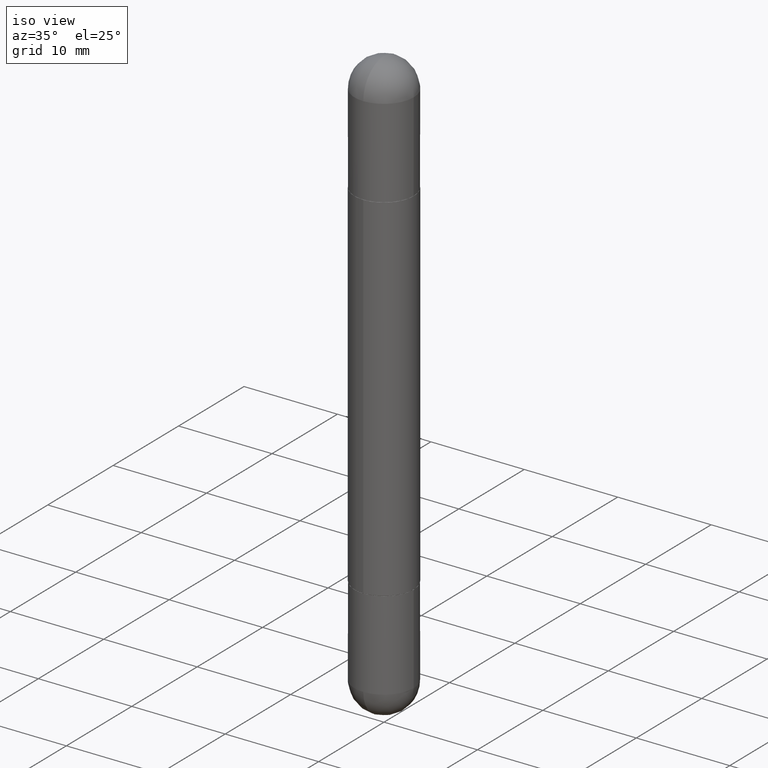
[diagram: clean part render]
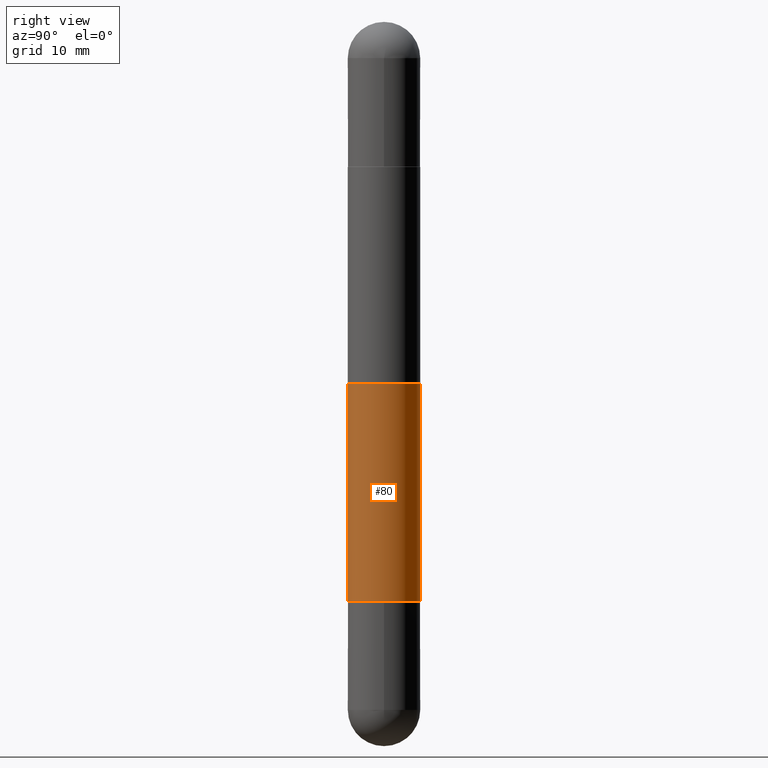
[diagram: tour spotlight — one face highlighted and labeled with its STEP entity id]
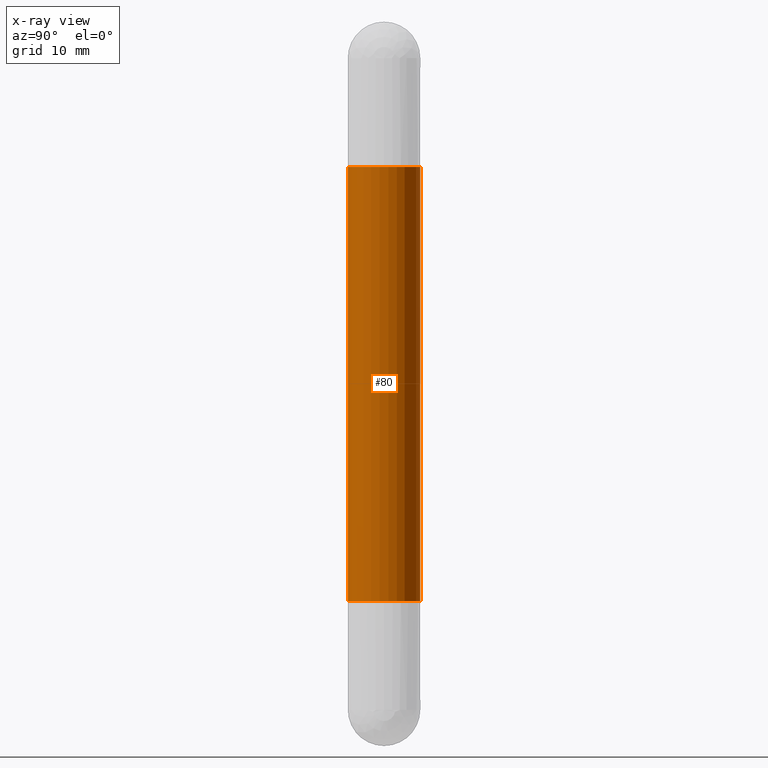
[diagram: x-ray of the same camera — body ghosted, this tour face saturated]
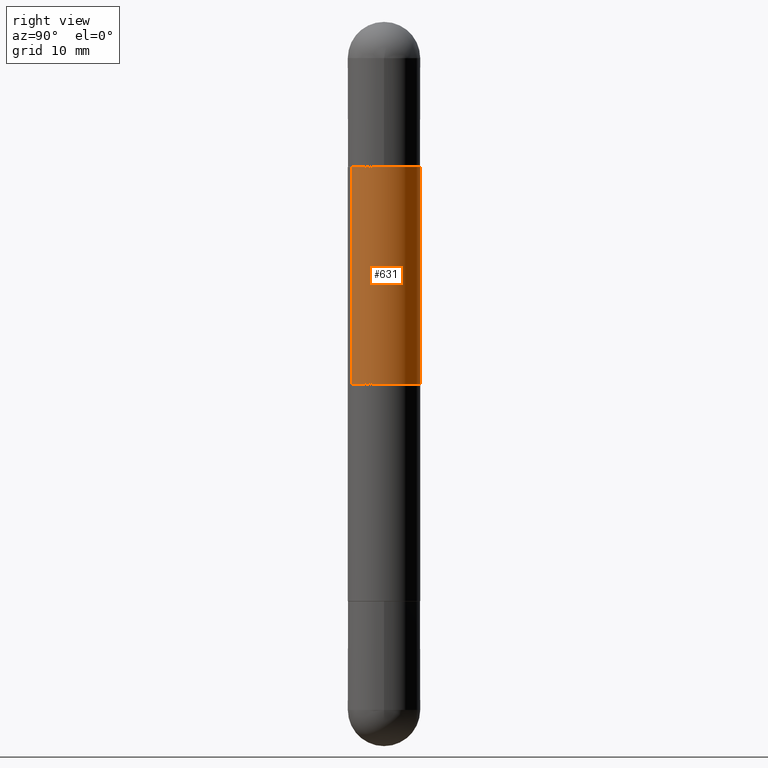
[diagram: tour spotlight — one face highlighted and labeled with its STEP entity id]
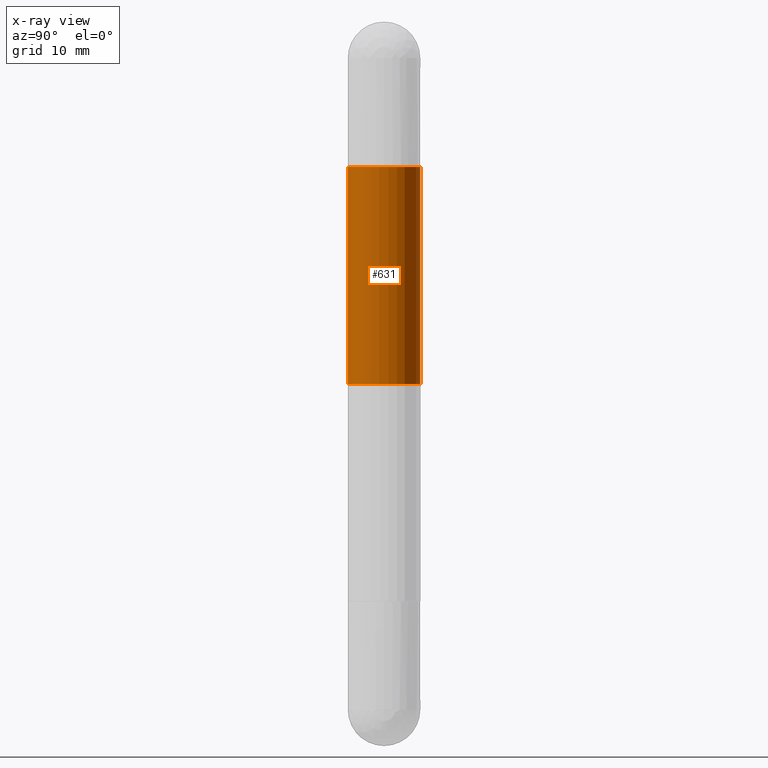
[diagram: x-ray of the same camera — body ghosted, this tour face saturated]
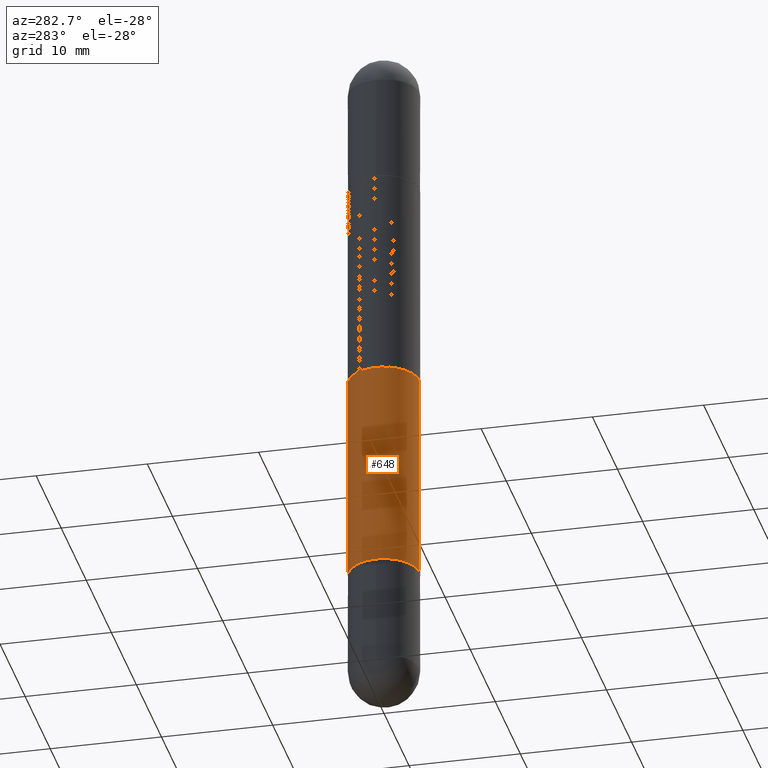
[diagram: tour spotlight — one face highlighted and labeled with its STEP entity id]
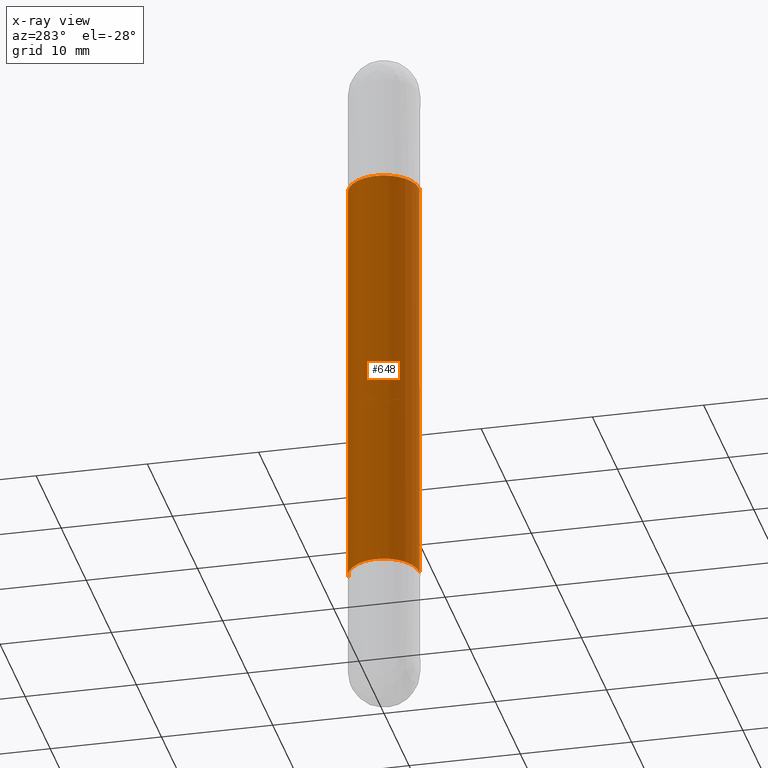
[diagram: x-ray of the same camera — body ghosted, this tour face saturated]
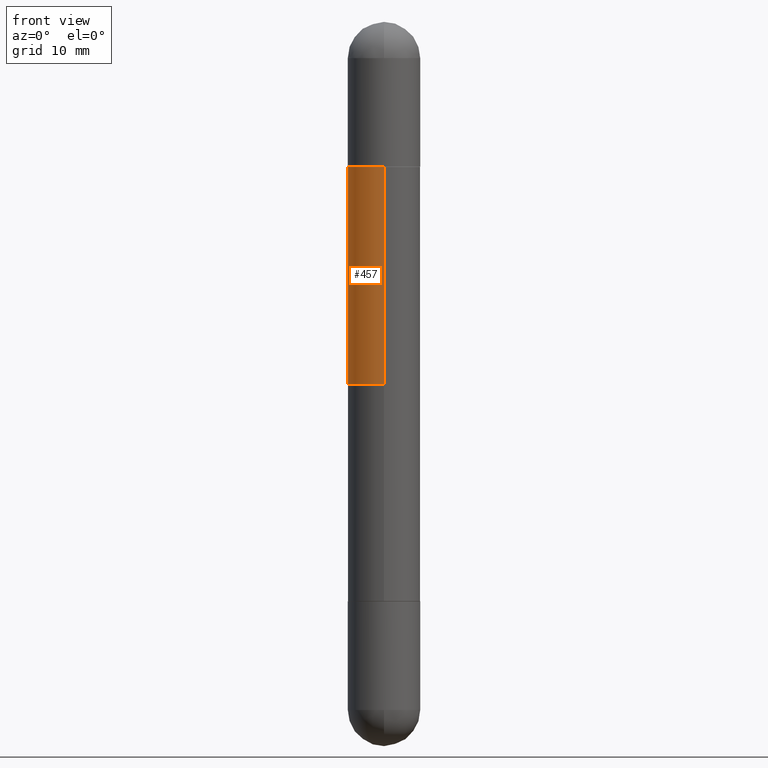
[diagram: tour spotlight — one face highlighted and labeled with its STEP entity id]
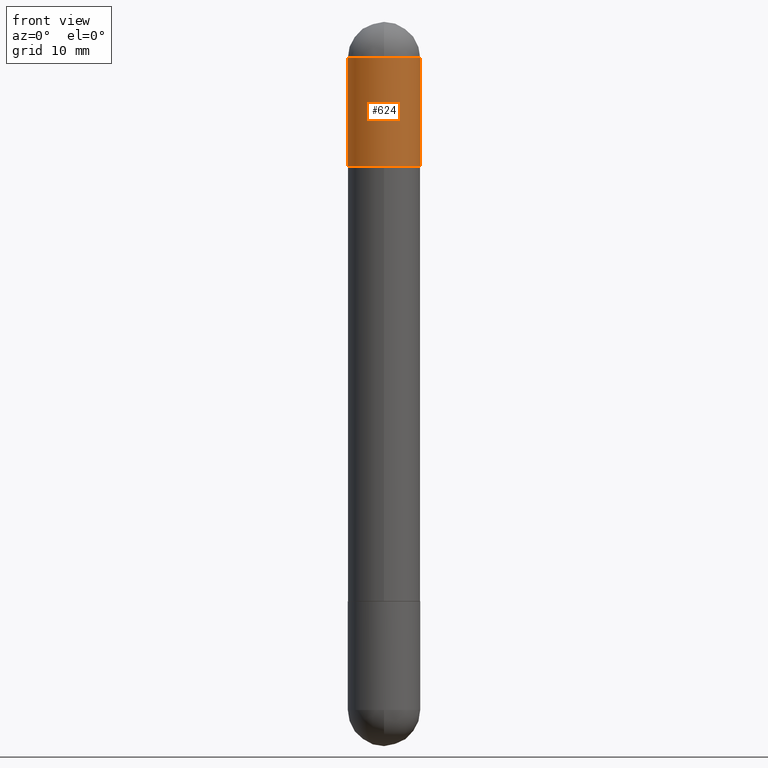
[diagram: tour spotlight — one face highlighted and labeled with its STEP entity id]
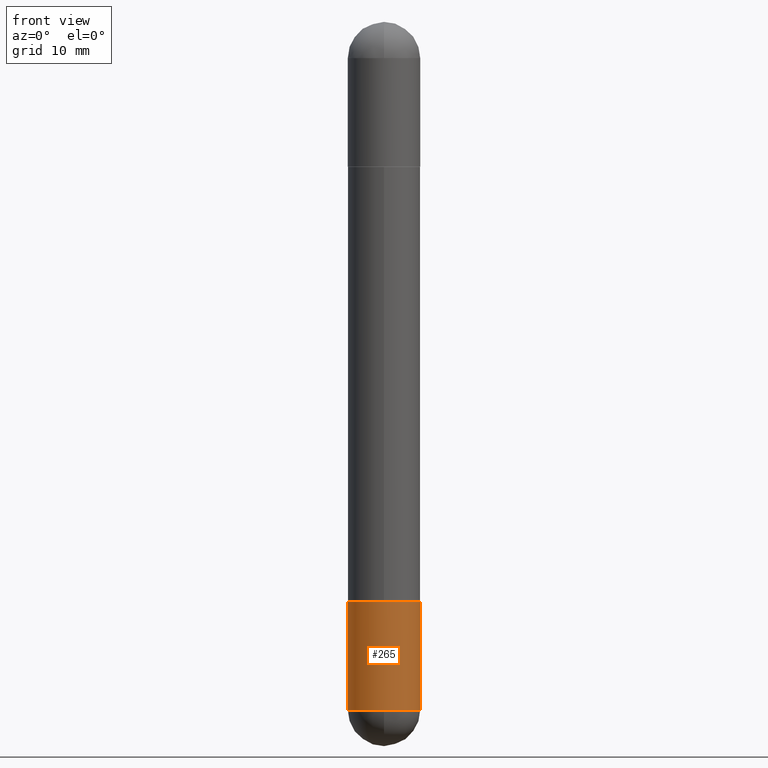
[diagram: tour spotlight — one face highlighted and labeled with its STEP entity id]
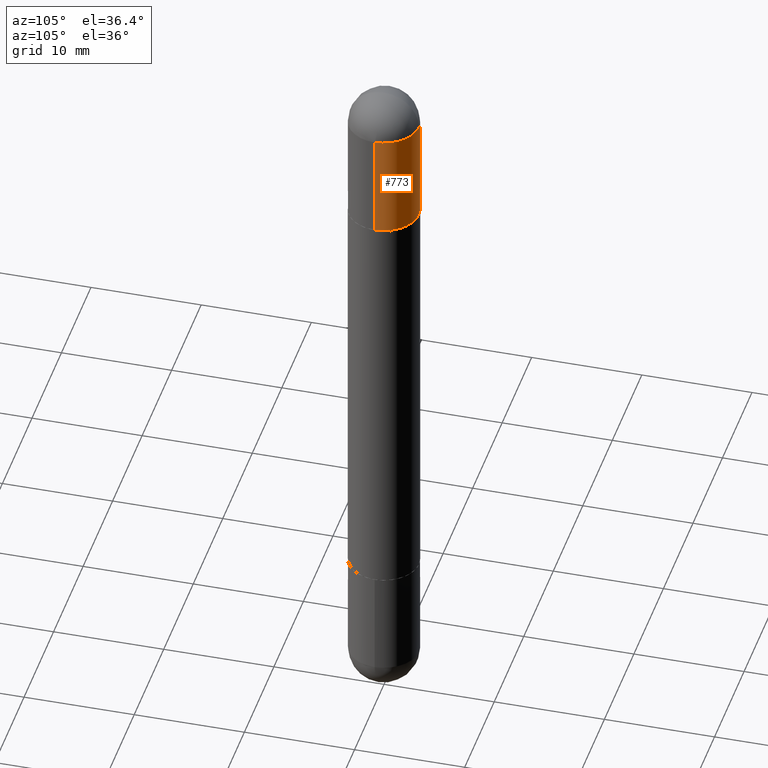
[diagram: tour spotlight — one face highlighted and labeled with its STEP entity id]
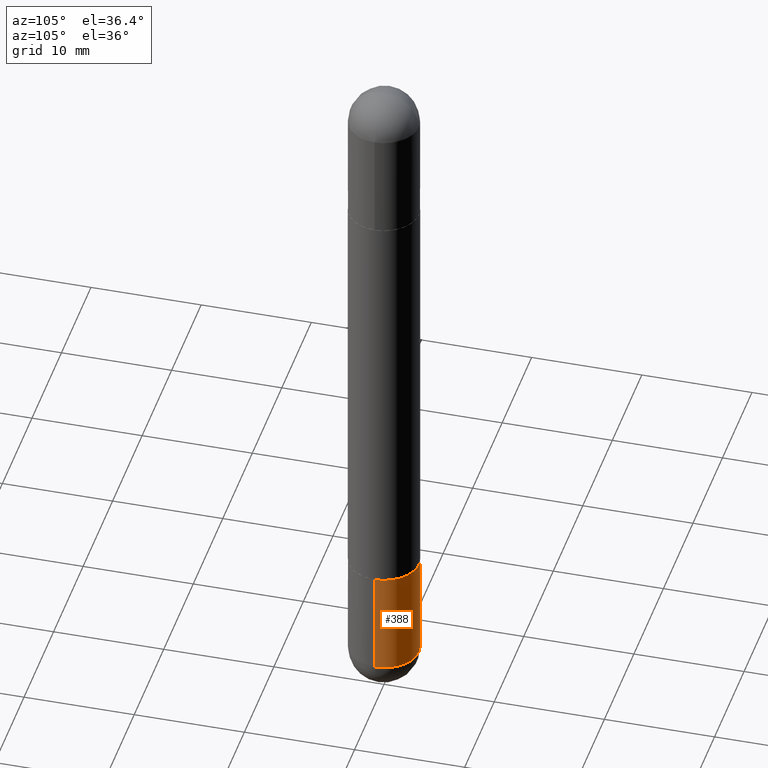
[diagram: tour spotlight — one face highlighted and labeled with its STEP entity id]
A machine part: a face-by-face anatomy tour. The part has 29 B-rep faces; the first image is the clean iso view, then the 8 largest visible faces are spotlighted one at a time (largest first), each with its STEP entity span.

Face 1 — right view, entity #80. An x-ray twin of the same camera follows (body ghosted, this face saturated) — the face is partly hidden behind the body. In plain terms, the highlighted cylindrical surface (edge-blend (fillet) strip) has radius 3.175 mm, axis along (-0, 0, -1).
Definition (entity closure, byte-faithful):
#27 = DIRECTION ( 'NONE',  ( -2.445337981103964041E-29, 3.491668687805485632E-15, -1.000000000000000000 ) ) ;
#30 = CARTESIAN_POINT ( 'NONE',  ( 4.888230624226823616E-29, -6.979845706923164784E-15, -1.998999999999999666 ) ) ;
#35 = EDGE_CURVE ( 'NONE', #113, #572, #329, .T. ) ;
#36 = CARTESIAN_POINT ( 'NONE',  ( 0.000000000000000000, 0.000000000000000000, -2.500000000000000444 ) ) ;
#43 = CARTESIAN_POINT ( 'NONE',  ( 4.888230624226823616E-29, -6.979845706923164784E-15, -0.5010000000000010001 ) ) ;
#69 = EDGE_CURVE ( 'NONE', #271, #563, #530, .T. ) ;
#80 = ADVANCED_FACE ( 'NONE', ( #158 ), #410, .T. ) ;
#97 = DIRECTION ( 'NONE',  ( -6.982962677686265922E-15, -1.000000000000000000, -4.370956789862816416E-15 ) ) ;
#113 = VERTEX_POINT ( 'NONE', #178 ) ;
#132 = ORIENTED_EDGE ( 'NONE', *, *, #464, .T. ) ;
#154 = DIRECTION ( 'NONE',  ( -6.982962677686265922E-15, -1.000000000000000000, -3.278217592397108762E-15 ) ) ;
#155 = EDGE_CURVE ( 'NONE', #572, #563, #561, .T. ) ;
#158 = FACE_OUTER_BOUND ( 'NONE', #313, .T. ) ;
#178 = CARTESIAN_POINT ( 'NONE',  ( -8.728703347107364016E-16, -0.1250000000000072720, -0.5010000000000014442 ) ) ;
#209 = VECTOR ( 'NONE', #27, 39.37007874015748143 ) ;
#224 = DIRECTION ( 'NONE',  ( -6.982962677686265922E-15, -1.000000000000000000, 4.370956789862811683E-15 ) ) ;
#270 = LINE ( 'NONE', #333, #209 ) ;
#271 = VERTEX_POINT ( 'NONE', #422 ) ;
#275 = CARTESIAN_POINT ( 'NONE',  ( 8.575622497214919324E-16, 0.1249999999999932693, -0.5010000000000006670 ) ) ;
#284 = DIRECTION ( 'NONE',  ( 2.445337981103964041E-29, -3.491668687805485632E-15, 1.000000000000000000 ) ) ;
#313 = EDGE_LOOP ( 'NONE', ( #502, #632, #132, #331 ) ) ;
#329 = CIRCLE ( 'NONE', #546, 0.1250000000000002776 ) ;
#331 = ORIENTED_EDGE ( 'NONE', *, *, #69, .T. ) ;
#333 = CARTESIAN_POINT ( 'NONE',  ( -8.728703347107842263E-16, -0.1250000000000001388, -2.500000000000001332 ) ) ;
#410 = CYLINDRICAL_SURFACE ( 'NONE', #459, 0.1250000000000001388 ) ;
#422 = CARTESIAN_POINT ( 'NONE',  ( -8.728703347107363030E-16, -0.1250000000000072442, -1.998999999999999000 ) ) ;
#459 = AXIS2_PLACEMENT_3D ( 'NONE', #36, #478, #97 ) ;
#464 = EDGE_CURVE ( 'NONE', #113, #271, #270, .T. ) ;
#478 = DIRECTION ( 'NONE',  ( -2.445337981103964041E-29, 3.491668687805485632E-15, -1.000000000000000000 ) ) ;
#502 = ORIENTED_EDGE ( 'NONE', *, *, #155, .F. ) ;
#530 = CIRCLE ( 'NONE', #647, 0.1250000000000002776 ) ;
#542 = DIRECTION ( 'NONE',  ( -2.445337981103964041E-29, 3.491668687805485632E-15, 1.000000000000000000 ) ) ;
#546 = AXIS2_PLACEMENT_3D ( 'NONE', #43, #284, #154 ) ;
#557 = DIRECTION ( 'NONE',  ( -2.445337981103964041E-29, 3.491668687805485632E-15, -1.000000000000000000 ) ) ;
#561 = LINE ( 'NONE', #626, #710 ) ;
#563 = VERTEX_POINT ( 'NONE', #660 ) ;
#572 = VERTEX_POINT ( 'NONE', #275 ) ;
#626 = CARTESIAN_POINT ( 'NONE',  ( 8.575622497214423328E-16, 0.1250000000000001388, -2.500000000000000000 ) ) ;
#632 = ORIENTED_EDGE ( 'NONE', *, *, #35, .F. ) ;
#647 = AXIS2_PLACEMENT_3D ( 'NONE', #30, #542, #224 ) ;
#660 = CARTESIAN_POINT ( 'NONE',  ( 8.575622497214732956E-16, 0.1249999999999932693, -1.999000000000000110 ) ) ;
#710 = VECTOR ( 'NONE', #557, 39.37007874015748143 ) ;

Face 2 — right view, entity #631. An x-ray twin of the same camera follows (body ghosted, this face saturated) — the face is partly hidden behind the body. In plain terms, the highlighted cylindrical surface (edge-blend (fillet) strip) has radius 3.175 mm, axis along (-0, 0, -1).
Definition (entity closure, byte-faithful):
#14 = LINE ( 'NONE', #269, #565 ) ;
#19 = CARTESIAN_POINT ( 'NONE',  ( 4.888230624226823616E-29, -6.979845706923164784E-15, -0.5010000000000010001 ) ) ;
#21 = VERTEX_POINT ( 'NONE', #617 ) ;
#52 = ORIENTED_EDGE ( 'NONE', *, *, #637, .T. ) ;
#82 = CARTESIAN_POINT ( 'NONE',  ( 3.056672476379955962E-29, -4.364585859756858224E-15, -1.250000000000000222 ) ) ;
#138 = DIRECTION ( 'NONE',  ( -2.445337981103964041E-29, 3.491668687805485632E-15, -1.000000000000000000 ) ) ;
#196 = ORIENTED_EDGE ( 'NONE', *, *, #435, .F. ) ;
#201 = DIRECTION ( 'NONE',  ( -0.000000000000000000, -0.000000000000000000, -1.000000000000000000 ) ) ;
#206 = DIRECTION ( 'NONE',  ( -1.000000000000000000, 0.000000000000000000, 0.000000000000000000 ) ) ;
#211 = CIRCLE ( 'NONE', #281, 0.1250000000000001388 ) ;
#212 = CARTESIAN_POINT ( 'NONE',  ( 8.575622497214423328E-16, 0.1250000000000001388, -2.500000000000000000 ) ) ;
#269 = CARTESIAN_POINT ( 'NONE',  ( -8.728703347107842263E-16, -0.1250000000000001388, -2.500000000000001332 ) ) ;
#280 = CARTESIAN_POINT ( 'NONE',  ( 0.000000000000000000, 0.000000000000000000, -2.500000000000000444 ) ) ;
#281 = AXIS2_PLACEMENT_3D ( 'NONE', #82, #201, #206 ) ;
#282 = AXIS2_PLACEMENT_3D ( 'NONE', #19, #705, #764 ) ;
#286 = CARTESIAN_POINT ( 'NONE',  ( 8.575622497214909463E-16, 0.1249999999999957673, -1.250000000000000222 ) ) ;
#337 = ORIENTED_EDGE ( 'NONE', *, *, #641, .F. ) ;
#349 = AXIS2_PLACEMENT_3D ( 'NONE', #280, #138, #723 ) ;
#395 = CARTESIAN_POINT ( 'NONE',  ( -8.728703347107444874E-16, -0.1250000000000044964, -1.250000000000000222 ) ) ;
#435 = EDGE_CURVE ( 'NONE', #21, #816, #649, .T. ) ;
#521 = CIRCLE ( 'NONE', #282, 0.1250000000000002776 ) ;
#524 = DIRECTION ( 'NONE',  ( -2.445337981103964041E-29, 3.491668687805485632E-15, -1.000000000000000000 ) ) ;
#565 = VECTOR ( 'NONE', #524, 39.37007874015748143 ) ;
#574 = VERTEX_POINT ( 'NONE', #395 ) ;
#586 = FACE_OUTER_BOUND ( 'NONE', #634, .T. ) ;
#596 = ORIENTED_EDGE ( 'NONE', *, *, #603, .F. ) ;
#603 = EDGE_CURVE ( 'NONE', #751, #21, #521, .T. ) ;
#617 = CARTESIAN_POINT ( 'NONE',  ( 8.575622497214919324E-16, 0.1249999999999932693, -0.5010000000000006670 ) ) ;
#631 = ADVANCED_FACE ( 'NONE', ( #586 ), #768, .T. ) ;
#634 = EDGE_LOOP ( 'NONE', ( #196, #596, #52, #337 ) ) ;
#637 = EDGE_CURVE ( 'NONE', #751, #574, #14, .T. ) ;
#641 = EDGE_CURVE ( 'NONE', #816, #574, #211, .T. ) ;
#649 = LINE ( 'NONE', #212, #777 ) ;
#705 = DIRECTION ( 'NONE',  ( 2.445337981103964041E-29, -3.491668687805485632E-15, 1.000000000000000000 ) ) ;
#723 = DIRECTION ( 'NONE',  ( -6.982962677686265922E-15, -1.000000000000000000, -4.370956789862816416E-15 ) ) ;
#725 = DIRECTION ( 'NONE',  ( -2.445337981103964041E-29, 3.491668687805485632E-15, -1.000000000000000000 ) ) ;
#751 = VERTEX_POINT ( 'NONE', #806 ) ;
#764 = DIRECTION ( 'NONE',  ( -6.982962677686265922E-15, -1.000000000000000000, -3.278217592397108762E-15 ) ) ;
#768 = CYLINDRICAL_SURFACE ( 'NONE', #349, 0.1250000000000001388 ) ;
#777 = VECTOR ( 'NONE', #725, 39.37007874015748143 ) ;
#806 = CARTESIAN_POINT ( 'NONE',  ( -8.728703347107364016E-16, -0.1250000000000072720, -0.5010000000000014442 ) ) ;
#816 = VERTEX_POINT ( 'NONE', #286 ) ;

Face 3 — auxiliary view, entity #648. An x-ray twin of the same camera follows (body ghosted, this face saturated) — the face is partly hidden behind the body. In plain terms, the highlighted cylindrical surface (edge-blend (fillet) strip) has radius 3.175 mm, axis along (-0, 0, -1).
Definition (entity closure, byte-faithful):
#27 = DIRECTION ( 'NONE',  ( -2.445337981103964041E-29, 3.491668687805485632E-15, -1.000000000000000000 ) ) ;
#73 = AXIS2_PLACEMENT_3D ( 'NONE', #681, #620, #237 ) ;
#86 = DIRECTION ( 'NONE',  ( -2.445337981103964041E-29, 3.491668687805485632E-15, -1.000000000000000000 ) ) ;
#113 = VERTEX_POINT ( 'NONE', #178 ) ;
#114 = DIRECTION ( 'NONE',  ( 2.445337981103964041E-29, -3.491668687805485632E-15, 1.000000000000000000 ) ) ;
#155 = EDGE_CURVE ( 'NONE', #572, #563, #561, .T. ) ;
#178 = CARTESIAN_POINT ( 'NONE',  ( -8.728703347107364016E-16, -0.1250000000000072720, -0.5010000000000014442 ) ) ;
#197 = AXIS2_PLACEMENT_3D ( 'NONE', #655, #86, #339 ) ;
#208 = EDGE_LOOP ( 'NONE', ( #402, #818, #568, #439 ) ) ;
#209 = VECTOR ( 'NONE', #27, 39.37007874015748143 ) ;
#213 = EDGE_CURVE ( 'NONE', #572, #113, #294, .T. ) ;
#225 = CARTESIAN_POINT ( 'NONE',  ( 4.888230624226823616E-29, -6.979845706923164784E-15, -0.5010000000000010001 ) ) ;
#237 = DIRECTION ( 'NONE',  ( -6.982962677686265922E-15, -1.000000000000000000, 4.370956789862811683E-15 ) ) ;
#270 = LINE ( 'NONE', #333, #209 ) ;
#271 = VERTEX_POINT ( 'NONE', #422 ) ;
#275 = CARTESIAN_POINT ( 'NONE',  ( 8.575622497214919324E-16, 0.1249999999999932693, -0.5010000000000006670 ) ) ;
#294 = CIRCLE ( 'NONE', #532, 0.1250000000000002776 ) ;
#330 = EDGE_CURVE ( 'NONE', #563, #271, #582, .T. ) ;
#333 = CARTESIAN_POINT ( 'NONE',  ( -8.728703347107842263E-16, -0.1250000000000001388, -2.500000000000001332 ) ) ;
#339 = DIRECTION ( 'NONE',  ( -6.982962677686265922E-15, -1.000000000000000000, -4.370956789862816416E-15 ) ) ;
#400 = CYLINDRICAL_SURFACE ( 'NONE', #197, 0.1250000000000001388 ) ;
#402 = ORIENTED_EDGE ( 'NONE', *, *, #213, .F. ) ;
#422 = CARTESIAN_POINT ( 'NONE',  ( -8.728703347107363030E-16, -0.1250000000000072442, -1.998999999999999000 ) ) ;
#439 = ORIENTED_EDGE ( 'NONE', *, *, #464, .F. ) ;
#464 = EDGE_CURVE ( 'NONE', #113, #271, #270, .T. ) ;
#532 = AXIS2_PLACEMENT_3D ( 'NONE', #225, #114, #670 ) ;
#557 = DIRECTION ( 'NONE',  ( -2.445337981103964041E-29, 3.491668687805485632E-15, -1.000000000000000000 ) ) ;
#561 = LINE ( 'NONE', #626, #710 ) ;
#563 = VERTEX_POINT ( 'NONE', #660 ) ;
#568 = ORIENTED_EDGE ( 'NONE', *, *, #330, .T. ) ;
#572 = VERTEX_POINT ( 'NONE', #275 ) ;
#582 = CIRCLE ( 'NONE', #73, 0.1250000000000002776 ) ;
#597 = FACE_OUTER_BOUND ( 'NONE', #208, .T. ) ;
#620 = DIRECTION ( 'NONE',  ( -2.445337981103964041E-29, 3.491668687805485632E-15, 1.000000000000000000 ) ) ;
#626 = CARTESIAN_POINT ( 'NONE',  ( 8.575622497214423328E-16, 0.1250000000000001388, -2.500000000000000000 ) ) ;
#648 = ADVANCED_FACE ( 'NONE', ( #597 ), #400, .T. ) ;
#655 = CARTESIAN_POINT ( 'NONE',  ( 0.000000000000000000, 0.000000000000000000, -2.500000000000000444 ) ) ;
#660 = CARTESIAN_POINT ( 'NONE',  ( 8.575622497214732956E-16, 0.1249999999999932693, -1.999000000000000110 ) ) ;
#670 = DIRECTION ( 'NONE',  ( -6.982962677686265922E-15, -1.000000000000000000, -3.278217592397108762E-15 ) ) ;
#681 = CARTESIAN_POINT ( 'NONE',  ( 4.888230624226823616E-29, -6.979845706923164784E-15, -1.998999999999999666 ) ) ;
#710 = VECTOR ( 'NONE', #557, 39.37007874015748143 ) ;
#818 = ORIENTED_EDGE ( 'NONE', *, *, #155, .T. ) ;

Face 4 — front view, entity #457. In plain terms, the highlighted cylindrical surface (edge-blend (fillet) strip) has radius 3.175 mm, axis along (-0, 0, -1).
Definition (entity closure, byte-faithful):
#14 = LINE ( 'NONE', #269, #565 ) ;
#20 = FACE_OUTER_BOUND ( 'NONE', #658, .T. ) ;
#21 = VERTEX_POINT ( 'NONE', #617 ) ;
#29 = CIRCLE ( 'NONE', #500, 0.1250000000000001388 ) ;
#57 = EDGE_CURVE ( 'NONE', #21, #751, #573, .T. ) ;
#74 = DIRECTION ( 'NONE',  ( -6.982962677686265922E-15, -1.000000000000000000, -4.370956789862816416E-15 ) ) ;
#135 = ORIENTED_EDGE ( 'NONE', *, *, #616, .F. ) ;
#148 = CARTESIAN_POINT ( 'NONE',  ( 0.000000000000000000, 0.000000000000000000, -2.500000000000000444 ) ) ;
#174 = ORIENTED_EDGE ( 'NONE', *, *, #57, .F. ) ;
#212 = CARTESIAN_POINT ( 'NONE',  ( 8.575622497214423328E-16, 0.1250000000000001388, -2.500000000000000000 ) ) ;
#269 = CARTESIAN_POINT ( 'NONE',  ( -8.728703347107842263E-16, -0.1250000000000001388, -2.500000000000001332 ) ) ;
#272 = DIRECTION ( 'NONE',  ( -0.000000000000000000, -0.000000000000000000, -1.000000000000000000 ) ) ;
#286 = CARTESIAN_POINT ( 'NONE',  ( 8.575622497214909463E-16, 0.1249999999999957673, -1.250000000000000222 ) ) ;
#323 = ORIENTED_EDGE ( 'NONE', *, *, #637, .F. ) ;
#326 = CARTESIAN_POINT ( 'NONE',  ( 3.056672476379955962E-29, -4.364585859756858224E-15, -1.250000000000000222 ) ) ;
#351 = DIRECTION ( 'NONE',  ( 2.445337981103964041E-29, -3.491668687805485632E-15, 1.000000000000000000 ) ) ;
#380 = ORIENTED_EDGE ( 'NONE', *, *, #435, .T. ) ;
#395 = CARTESIAN_POINT ( 'NONE',  ( -8.728703347107444874E-16, -0.1250000000000044964, -1.250000000000000222 ) ) ;
#397 = DIRECTION ( 'NONE',  ( -2.445337981103964041E-29, 3.491668687805485632E-15, -1.000000000000000000 ) ) ;
#435 = EDGE_CURVE ( 'NONE', #21, #816, #649, .T. ) ;
#449 = AXIS2_PLACEMENT_3D ( 'NONE', #148, #397, #74 ) ;
#457 = ADVANCED_FACE ( 'NONE', ( #20 ), #458, .T. ) ;
#458 = CYLINDRICAL_SURFACE ( 'NONE', #449, 0.1250000000000001388 ) ;
#500 = AXIS2_PLACEMENT_3D ( 'NONE', #326, #272, #713 ) ;
#524 = DIRECTION ( 'NONE',  ( -2.445337981103964041E-29, 3.491668687805485632E-15, -1.000000000000000000 ) ) ;
#565 = VECTOR ( 'NONE', #524, 39.37007874015748143 ) ;
#573 = CIRCLE ( 'NONE', #786, 0.1250000000000002776 ) ;
#574 = VERTEX_POINT ( 'NONE', #395 ) ;
#616 = EDGE_CURVE ( 'NONE', #574, #816, #29, .T. ) ;
#617 = CARTESIAN_POINT ( 'NONE',  ( 8.575622497214919324E-16, 0.1249999999999932693, -0.5010000000000006670 ) ) ;
#637 = EDGE_CURVE ( 'NONE', #751, #574, #14, .T. ) ;
#649 = LINE ( 'NONE', #212, #777 ) ;
#658 = EDGE_LOOP ( 'NONE', ( #174, #380, #135, #323 ) ) ;
#668 = CARTESIAN_POINT ( 'NONE',  ( 4.888230624226823616E-29, -6.979845706923164784E-15, -0.5010000000000010001 ) ) ;
#713 = DIRECTION ( 'NONE',  ( -1.000000000000000000, 0.000000000000000000, 0.000000000000000000 ) ) ;
#725 = DIRECTION ( 'NONE',  ( -2.445337981103964041E-29, 3.491668687805485632E-15, -1.000000000000000000 ) ) ;
#730 = DIRECTION ( 'NONE',  ( -6.982962677686265922E-15, -1.000000000000000000, -3.278217592397108762E-15 ) ) ;
#751 = VERTEX_POINT ( 'NONE', #806 ) ;
#777 = VECTOR ( 'NONE', #725, 39.37007874015748143 ) ;
#786 = AXIS2_PLACEMENT_3D ( 'NONE', #668, #351, #730 ) ;
#806 = CARTESIAN_POINT ( 'NONE',  ( -8.728703347107364016E-16, -0.1250000000000072720, -0.5010000000000014442 ) ) ;
#816 = VERTEX_POINT ( 'NONE', #286 ) ;

Face 5 — front view, entity #624. In plain terms, the highlighted cylindrical surface (edge-blend (fillet) strip) has radius 3.175 mm, axis along (-0, 0, -1).
Definition (entity closure, byte-faithful):
#2 = EDGE_LOOP ( 'NONE', ( #809, #770, #580, #193, #389 ) ) ;
#5 = VERTEX_POINT ( 'NONE', #460 ) ;
#16 = CARTESIAN_POINT ( 'NONE',  ( 0.1250000000000000000, -8.728703347107833388E-16, -2.500000000000000444 ) ) ;
#78 = CIRCLE ( 'NONE', #493, 0.1250000000000000000 ) ;
#83 = DIRECTION ( 'NONE',  ( -2.445468806185136877E-29, 3.491481338843145188E-15, -1.000000000000000000 ) ) ;
#87 = LINE ( 'NONE', #16, #682 ) ;
#156 = DIRECTION ( 'NONE',  ( -2.445468806185136597E-29, 3.491481338843145583E-15, -1.000000000000000000 ) ) ;
#168 = CARTESIAN_POINT ( 'NONE',  ( 5.807988414689700538E-29, -8.292268179752471696E-15, -0.1250000000000004441 ) ) ;
#179 = DIRECTION ( 'NONE',  ( 2.445468806185136597E-29, -3.491481338843145583E-15, 1.000000000000000000 ) ) ;
#192 = EDGE_CURVE ( 'NONE', #559, #700, #78, .T. ) ;
#193 = ORIENTED_EDGE ( 'NONE', *, *, #417, .F. ) ;
#198 = CYLINDRICAL_SURFACE ( 'NONE', #244, 0.1250000000000000000 ) ;
#215 = CARTESIAN_POINT ( 'NONE',  ( -0.1250000000000000000, -6.780053178997941168E-15, -0.1250000000000004441 ) ) ;
#242 = VECTOR ( 'NONE', #656, 39.37007874015748143 ) ;
#243 = CIRCLE ( 'NONE', #595, 0.1250000000000000000 ) ;
#244 = AXIS2_PLACEMENT_3D ( 'NONE', #342, #156, #604 ) ;
#277 = CARTESIAN_POINT ( 'NONE',  ( -0.1250000000000000000, 8.575622497214414453E-16, -2.500000000000000444 ) ) ;
#342 = CARTESIAN_POINT ( 'NONE',  ( 0.000000000000000000, 0.000000000000000000, -2.500000000000000444 ) ) ;
#364 = DIRECTION ( 'NONE',  ( 1.000000000000000000, -6.982962677686270655E-15, 0.000000000000000000 ) ) ;
#368 = DIRECTION ( 'NONE',  ( 2.445468806185136597E-29, -3.491481338843145583E-15, 1.000000000000000000 ) ) ;
#375 = EDGE_CURVE ( 'NONE', #559, #628, #468, .T. ) ;
#389 = ORIENTED_EDGE ( 'NONE', *, *, #566, .F. ) ;
#417 = EDGE_CURVE ( 'NONE', #591, #5, #87, .T. ) ;
#434 = DIRECTION ( 'NONE',  ( 1.000000000000000000, -6.982962677686270655E-15, 0.000000000000000000 ) ) ;
#456 = DIRECTION ( 'NONE',  ( 2.445468806185136597E-29, -3.491481338843145583E-15, 1.000000000000000000 ) ) ;
#460 = CARTESIAN_POINT ( 'NONE',  ( 0.1250000000000000000, -7.855833012397075293E-15, -0.5000000000000006661 ) ) ;
#468 = LINE ( 'NONE', #277, #242 ) ;
#471 = CARTESIAN_POINT ( 'NONE',  ( -0.1250000000000000000, -6.780053178997939591E-15, -0.5000000000000006661 ) ) ;
#493 = AXIS2_PLACEMENT_3D ( 'NONE', #168, #368, #364 ) ;
#539 = DIRECTION ( 'NONE',  ( 1.000000000000000000, -6.982962677686270655E-15, 0.000000000000000000 ) ) ;
#554 = CARTESIAN_POINT ( 'NONE',  ( -8.575622497213856334E-16, -0.1250000000000086320, -0.1250000000000008882 ) ) ;
#559 = VERTEX_POINT ( 'NONE', #215 ) ;
#564 = CIRCLE ( 'NONE', #807, 0.1250000000000000000 ) ;
#566 = EDGE_CURVE ( 'NONE', #700, #591, #564, .T. ) ;
#580 = ORIENTED_EDGE ( 'NONE', *, *, #788, .T. ) ;
#591 = VERTEX_POINT ( 'NONE', #646 ) ;
#595 = AXIS2_PLACEMENT_3D ( 'NONE', #745, #179, #434 ) ;
#604 = DIRECTION ( 'NONE',  ( 1.000000000000000000, -6.982962677686266711E-15, 0.000000000000000000 ) ) ;
#624 = ADVANCED_FACE ( 'NONE', ( #709 ), #198, .T. ) ;
#628 = VERTEX_POINT ( 'NONE', #471 ) ;
#646 = CARTESIAN_POINT ( 'NONE',  ( 0.1250000000000000000, -8.510485763430165164E-15, -0.1250000000000004441 ) ) ;
#656 = DIRECTION ( 'NONE',  ( -2.445468806185136877E-29, 3.491481338843145188E-15, -1.000000000000000000 ) ) ;
#682 = VECTOR ( 'NONE', #83, 39.37007874015748143 ) ;
#700 = VERTEX_POINT ( 'NONE', #554 ) ;
#709 = FACE_OUTER_BOUND ( 'NONE', #2, .T. ) ;
#745 = CARTESIAN_POINT ( 'NONE',  ( 4.890937612370273194E-29, -6.982962677686291165E-15, -0.5000000000000006661 ) ) ;
#770 = ORIENTED_EDGE ( 'NONE', *, *, #375, .T. ) ;
#771 = CARTESIAN_POINT ( 'NONE',  ( 5.807988414689700538E-29, -8.292268179752471696E-15, -0.1250000000000004441 ) ) ;
#788 = EDGE_CURVE ( 'NONE', #628, #5, #243, .T. ) ;
#807 = AXIS2_PLACEMENT_3D ( 'NONE', #771, #456, #539 ) ;
#809 = ORIENTED_EDGE ( 'NONE', *, *, #192, .F. ) ;

Face 6 — front view, entity #265. In plain terms, the highlighted cylindrical surface (edge-blend (fillet) strip) has radius 3.175 mm, axis along (-0, 0, 1).
Definition (entity closure, byte-faithful):
#7 = EDGE_CURVE ( 'NONE', #13, #372, #63, .T. ) ;
#12 = LINE ( 'NONE', #264, #431 ) ;
#13 = VERTEX_POINT ( 'NONE', #780 ) ;
#24 = DIRECTION ( 'NONE',  ( 1.000000000000000000, -6.982962677686270655E-15, 0.000000000000000000 ) ) ;
#47 = AXIS2_PLACEMENT_3D ( 'NONE', #739, #550, #429 ) ;
#50 = CARTESIAN_POINT ( 'NONE',  ( -0.1250000000000000000, -6.749437009019256592E-15, -2.375000000000000000 ) ) ;
#51 = LINE ( 'NONE', #803, #101 ) ;
#63 = CIRCLE ( 'NONE', #357, 0.1250000000000000000 ) ;
#66 = CIRCLE ( 'NONE', #428, 0.1250000000000000000 ) ;
#89 = CARTESIAN_POINT ( 'NONE',  ( 4.890937612370273194E-29, -6.982962677686291165E-15, -2.000000000000000000 ) ) ;
#101 = VECTOR ( 'NONE', #231, 39.37007874015748143 ) ;
#204 = VERTEX_POINT ( 'NONE', #731 ) ;
#219 = FACE_OUTER_BOUND ( 'NONE', #252, .T. ) ;
#221 = CARTESIAN_POINT ( 'NONE',  ( 0.1250000000000000000, -8.510485763430165164E-15, -2.375000000000000000 ) ) ;
#231 = DIRECTION ( 'NONE',  ( -2.445468806185136877E-29, 3.491481338843145188E-15, 1.000000000000000000 ) ) ;
#252 = EDGE_LOOP ( 'NONE', ( #767, #325, #310, #638, #312 ) ) ;
#264 = CARTESIAN_POINT ( 'NONE',  ( 0.1250000000000000000, -8.728703347107833388E-16, 6.095220969744919741E-30 ) ) ;
#265 = ADVANCED_FACE ( 'NONE', ( #219 ), #791, .T. ) ;
#296 = DIRECTION ( 'NONE',  ( -2.445468806185136597E-29, 3.491481338843145583E-15, 1.000000000000000000 ) ) ;
#310 = ORIENTED_EDGE ( 'NONE', *, *, #761, .T. ) ;
#312 = ORIENTED_EDGE ( 'NONE', *, *, #7, .F. ) ;
#325 = ORIENTED_EDGE ( 'NONE', *, *, #578, .T. ) ;
#327 = EDGE_CURVE ( 'NONE', #697, #13, #51, .T. ) ;
#357 = AXIS2_PLACEMENT_3D ( 'NONE', #89, #601, #24 ) ;
#372 = VERTEX_POINT ( 'NONE', #540 ) ;
#419 = CARTESIAN_POINT ( 'NONE',  ( 0.000000000000000000, 0.000000000000000000, 0.000000000000000000 ) ) ;
#428 = AXIS2_PLACEMENT_3D ( 'NONE', #467, #719, #452 ) ;
#429 = DIRECTION ( 'NONE',  ( 1.000000000000000000, -6.982962677686270655E-15, 0.000000000000000000 ) ) ;
#431 = VECTOR ( 'NONE', #520, 39.37007874015748143 ) ;
#452 = DIRECTION ( 'NONE',  ( 1.000000000000000000, -6.982962677686270655E-15, 0.000000000000000000 ) ) ;
#467 = CARTESIAN_POINT ( 'NONE',  ( 5.807988414689700538E-29, -8.292268179752471696E-15, -2.375000000000000000 ) ) ;
#470 = AXIS2_PLACEMENT_3D ( 'NONE', #419, #296, #796 ) ;
#495 = EDGE_CURVE ( 'NONE', #712, #372, #12, .T. ) ;
#499 = CIRCLE ( 'NONE', #47, 0.1250000000000000000 ) ;
#520 = DIRECTION ( 'NONE',  ( -2.445468806185136877E-29, 3.491481338843145188E-15, 1.000000000000000000 ) ) ;
#540 = CARTESIAN_POINT ( 'NONE',  ( 0.1250000000000000000, -7.855833012397075293E-15, -2.000000000000000000 ) ) ;
#550 = DIRECTION ( 'NONE',  ( -2.445468806185136597E-29, 3.491481338843145583E-15, 1.000000000000000000 ) ) ;
#578 = EDGE_CURVE ( 'NONE', #697, #204, #66, .T. ) ;
#601 = DIRECTION ( 'NONE',  ( -2.445468806185136597E-29, 3.491481338843145583E-15, 1.000000000000000000 ) ) ;
#638 = ORIENTED_EDGE ( 'NONE', *, *, #495, .T. ) ;
#697 = VERTEX_POINT ( 'NONE', #50 ) ;
#712 = VERTEX_POINT ( 'NONE', #221 ) ;
#719 = DIRECTION ( 'NONE',  ( -2.445468806185136597E-29, 3.491481338843145583E-15, 1.000000000000000000 ) ) ;
#731 = CARTESIAN_POINT ( 'NONE',  ( -8.881784197000694204E-16, -0.1250000000000086320, -2.374999999999999556 ) ) ;
#739 = CARTESIAN_POINT ( 'NONE',  ( 5.807988414689700538E-29, -8.292268179752471696E-15, -2.375000000000000000 ) ) ;
#761 = EDGE_CURVE ( 'NONE', #204, #712, #499, .T. ) ;
#767 = ORIENTED_EDGE ( 'NONE', *, *, #327, .F. ) ;
#780 = CARTESIAN_POINT ( 'NONE',  ( -0.1250000000000000000, -6.749437009019255804E-15, -2.000000000000000000 ) ) ;
#791 = CYLINDRICAL_SURFACE ( 'NONE', #470, 0.1250000000000000000 ) ;
#796 = DIRECTION ( 'NONE',  ( 1.000000000000000000, -6.982962677686266711E-15, 4.876176775795935793E-29 ) ) ;
#803 = CARTESIAN_POINT ( 'NONE',  ( -0.1250000000000000000, 8.881784197001252323E-16, -6.148668862818632227E-30 ) ) ;

Face 7 — auxiliary view, entity #773. In plain terms, the highlighted cylindrical surface (edge-blend (fillet) strip) has radius 3.175 mm, axis along (-0, 0, -1).
Definition (entity closure, byte-faithful):
#5 = VERTEX_POINT ( 'NONE', #460 ) ;
#9 = CIRCLE ( 'NONE', #249, 0.1250000000000000000 ) ;
#16 = CARTESIAN_POINT ( 'NONE',  ( 0.1250000000000000000, -8.728703347107833388E-16, -2.500000000000000444 ) ) ;
#39 = CARTESIAN_POINT ( 'NONE',  ( 0.000000000000000000, 0.000000000000000000, -2.500000000000000444 ) ) ;
#71 = EDGE_CURVE ( 'NONE', #591, #645, #437, .T. ) ;
#83 = DIRECTION ( 'NONE',  ( -2.445468806185136877E-29, 3.491481338843145188E-15, -1.000000000000000000 ) ) ;
#87 = LINE ( 'NONE', #16, #682 ) ;
#99 = DIRECTION ( 'NONE',  ( -2.445468806185136597E-29, 3.491481338843145583E-15, -1.000000000000000000 ) ) ;
#108 = DIRECTION ( 'NONE',  ( 1.000000000000000000, -6.982962677686270655E-15, 0.000000000000000000 ) ) ;
#115 = CYLINDRICAL_SURFACE ( 'NONE', #376, 0.1250000000000000000 ) ;
#139 = EDGE_CURVE ( 'NONE', #5, #628, #9, .T. ) ;
#159 = DIRECTION ( 'NONE',  ( 2.445468806185136597E-29, -3.491481338843145583E-15, 1.000000000000000000 ) ) ;
#163 = DIRECTION ( 'NONE',  ( 2.445468806185136597E-29, -3.491481338843145583E-15, 1.000000000000000000 ) ) ;
#171 = CIRCLE ( 'NONE', #590, 0.1250000000000000000 ) ;
#215 = CARTESIAN_POINT ( 'NONE',  ( -0.1250000000000000000, -6.780053178997941168E-15, -0.1250000000000004441 ) ) ;
#226 = EDGE_CURVE ( 'NONE', #645, #559, #171, .T. ) ;
#239 = CARTESIAN_POINT ( 'NONE',  ( 5.807988414689700538E-29, -8.292268179752471696E-15, -0.1250000000000004441 ) ) ;
#240 = DIRECTION ( 'NONE',  ( 1.000000000000000000, -6.982962677686266711E-15, 0.000000000000000000 ) ) ;
#242 = VECTOR ( 'NONE', #656, 39.37007874015748143 ) ;
#249 = AXIS2_PLACEMENT_3D ( 'NONE', #479, #159, #108 ) ;
#260 = AXIS2_PLACEMENT_3D ( 'NONE', #783, #163, #354 ) ;
#266 = ORIENTED_EDGE ( 'NONE', *, *, #417, .T. ) ;
#277 = CARTESIAN_POINT ( 'NONE',  ( -0.1250000000000000000, 8.575622497214414453E-16, -2.500000000000000444 ) ) ;
#354 = DIRECTION ( 'NONE',  ( 1.000000000000000000, -6.982962677686270655E-15, 0.000000000000000000 ) ) ;
#356 = DIRECTION ( 'NONE',  ( 1.000000000000000000, -6.982962677686270655E-15, 0.000000000000000000 ) ) ;
#375 = EDGE_CURVE ( 'NONE', #559, #628, #468, .T. ) ;
#376 = AXIS2_PLACEMENT_3D ( 'NONE', #39, #99, #240 ) ;
#377 = EDGE_LOOP ( 'NONE', ( #507, #651, #510, #266, #399 ) ) ;
#399 = ORIENTED_EDGE ( 'NONE', *, *, #139, .T. ) ;
#417 = EDGE_CURVE ( 'NONE', #591, #5, #87, .T. ) ;
#437 = CIRCLE ( 'NONE', #260, 0.1250000000000000000 ) ;
#460 = CARTESIAN_POINT ( 'NONE',  ( 0.1250000000000000000, -7.855833012397075293E-15, -0.5000000000000006661 ) ) ;
#468 = LINE ( 'NONE', #277, #242 ) ;
#471 = CARTESIAN_POINT ( 'NONE',  ( -0.1250000000000000000, -6.780053178997939591E-15, -0.5000000000000006661 ) ) ;
#479 = CARTESIAN_POINT ( 'NONE',  ( 4.890937612370273194E-29, -6.982962677686291165E-15, -0.5000000000000006661 ) ) ;
#507 = ORIENTED_EDGE ( 'NONE', *, *, #375, .F. ) ;
#510 = ORIENTED_EDGE ( 'NONE', *, *, #71, .F. ) ;
#559 = VERTEX_POINT ( 'NONE', #215 ) ;
#590 = AXIS2_PLACEMENT_3D ( 'NONE', #239, #727, #356 ) ;
#591 = VERTEX_POINT ( 'NONE', #646 ) ;
#628 = VERTEX_POINT ( 'NONE', #471 ) ;
#645 = VERTEX_POINT ( 'NONE', #652 ) ;
#646 = CARTESIAN_POINT ( 'NONE',  ( 0.1250000000000000000, -8.510485763430165164E-15, -0.1250000000000004441 ) ) ;
#651 = ORIENTED_EDGE ( 'NONE', *, *, #226, .F. ) ;
#652 = CARTESIAN_POINT ( 'NONE',  ( 8.728703347108403340E-16, 0.1249999999999915623, -0.1250000000000000000 ) ) ;
#656 = DIRECTION ( 'NONE',  ( -2.445468806185136877E-29, 3.491481338843145188E-15, -1.000000000000000000 ) ) ;
#682 = VECTOR ( 'NONE', #83, 39.37007874015748143 ) ;
#686 = FACE_OUTER_BOUND ( 'NONE', #377, .T. ) ;
#727 = DIRECTION ( 'NONE',  ( 2.445468806185136597E-29, -3.491481338843145583E-15, 1.000000000000000000 ) ) ;
#773 = ADVANCED_FACE ( 'NONE', ( #686 ), #115, .T. ) ;
#783 = CARTESIAN_POINT ( 'NONE',  ( 5.807988414689700538E-29, -8.292268179752471696E-15, -0.1250000000000004441 ) ) ;

Face 8 — auxiliary view, entity #388. In plain terms, the highlighted cylindrical surface (edge-blend (fillet) strip) has radius 3.175 mm, axis along (-0, 0, 1).
Definition (entity closure, byte-faithful):
#12 = LINE ( 'NONE', #264, #431 ) ;
#13 = VERTEX_POINT ( 'NONE', #780 ) ;
#25 = DIRECTION ( 'NONE',  ( -2.445468806185136597E-29, 3.491481338843145583E-15, 1.000000000000000000 ) ) ;
#50 = CARTESIAN_POINT ( 'NONE',  ( -0.1250000000000000000, -6.749437009019256592E-15, -2.375000000000000000 ) ) ;
#51 = LINE ( 'NONE', #803, #101 ) ;
#75 = ORIENTED_EDGE ( 'NONE', *, *, #495, .F. ) ;
#76 = AXIS2_PLACEMENT_3D ( 'NONE', #289, #418, #172 ) ;
#85 = EDGE_CURVE ( 'NONE', #372, #13, #291, .T. ) ;
#101 = VECTOR ( 'NONE', #231, 39.37007874015748143 ) ;
#143 = CARTESIAN_POINT ( 'NONE',  ( 5.807988414689700538E-29, -8.292268179752471696E-15, -2.375000000000000000 ) ) ;
#146 = ORIENTED_EDGE ( 'NONE', *, *, #630, .T. ) ;
#172 = DIRECTION ( 'NONE',  ( 1.000000000000000000, -6.982962677686270655E-15, 0.000000000000000000 ) ) ;
#210 = DIRECTION ( 'NONE',  ( 1.000000000000000000, -6.982962677686270655E-15, 0.000000000000000000 ) ) ;
#216 = FACE_OUTER_BOUND ( 'NONE', #254, .T. ) ;
#221 = CARTESIAN_POINT ( 'NONE',  ( 0.1250000000000000000, -8.510485763430165164E-15, -2.375000000000000000 ) ) ;
#231 = DIRECTION ( 'NONE',  ( -2.445468806185136877E-29, 3.491481338843145188E-15, 1.000000000000000000 ) ) ;
#254 = EDGE_LOOP ( 'NONE', ( #504, #305, #708, #75, #146 ) ) ;
#264 = CARTESIAN_POINT ( 'NONE',  ( 0.1250000000000000000, -8.728703347107833388E-16, 6.095220969744919741E-30 ) ) ;
#283 = CYLINDRICAL_SURFACE ( 'NONE', #384, 0.1250000000000000000 ) ;
#289 = CARTESIAN_POINT ( 'NONE',  ( 4.890937612370273194E-29, -6.982962677686291165E-15, -2.000000000000000000 ) ) ;
#291 = CIRCLE ( 'NONE', #76, 0.1250000000000000000 ) ;
#305 = ORIENTED_EDGE ( 'NONE', *, *, #327, .T. ) ;
#327 = EDGE_CURVE ( 'NONE', #697, #13, #51, .T. ) ;
#332 = DIRECTION ( 'NONE',  ( 1.000000000000000000, -6.982962677686270655E-15, 0.000000000000000000 ) ) ;
#335 = DIRECTION ( 'NONE',  ( -2.445468806185136597E-29, 3.491481338843145583E-15, 1.000000000000000000 ) ) ;
#372 = VERTEX_POINT ( 'NONE', #540 ) ;
#384 = AXIS2_PLACEMENT_3D ( 'NONE', #462, #653, #711 ) ;
#388 = ADVANCED_FACE ( 'NONE', ( #216 ), #283, .T. ) ;
#405 = CARTESIAN_POINT ( 'NONE',  ( 5.807988414689700538E-29, -8.292268179752471696E-15, -2.375000000000000000 ) ) ;
#418 = DIRECTION ( 'NONE',  ( -2.445468806185136597E-29, 3.491481338843145583E-15, 1.000000000000000000 ) ) ;
#425 = CARTESIAN_POINT ( 'NONE',  ( 8.728703347108403340E-16, 0.1249999999999915623, -2.375000000000000888 ) ) ;
#431 = VECTOR ( 'NONE', #520, 39.37007874015748143 ) ;
#462 = CARTESIAN_POINT ( 'NONE',  ( 0.000000000000000000, 0.000000000000000000, 0.000000000000000000 ) ) ;
#495 = EDGE_CURVE ( 'NONE', #712, #372, #12, .T. ) ;
#504 = ORIENTED_EDGE ( 'NONE', *, *, #541, .T. ) ;
#520 = DIRECTION ( 'NONE',  ( -2.445468806185136877E-29, 3.491481338843145188E-15, 1.000000000000000000 ) ) ;
#540 = CARTESIAN_POINT ( 'NONE',  ( 0.1250000000000000000, -7.855833012397075293E-15, -2.000000000000000000 ) ) ;
#541 = EDGE_CURVE ( 'NONE', #754, #697, #763, .T. ) ;
#609 = CIRCLE ( 'NONE', #703, 0.1250000000000000000 ) ;
#630 = EDGE_CURVE ( 'NONE', #712, #754, #609, .T. ) ;
#653 = DIRECTION ( 'NONE',  ( -2.445468806185136597E-29, 3.491481338843145583E-15, 1.000000000000000000 ) ) ;
#697 = VERTEX_POINT ( 'NONE', #50 ) ;
#701 = AXIS2_PLACEMENT_3D ( 'NONE', #405, #335, #210 ) ;
#703 = AXIS2_PLACEMENT_3D ( 'NONE', #143, #25, #332 ) ;
#708 = ORIENTED_EDGE ( 'NONE', *, *, #85, .F. ) ;
#711 = DIRECTION ( 'NONE',  ( 1.000000000000000000, -6.982962677686266711E-15, 4.876176775795935793E-29 ) ) ;
#712 = VERTEX_POINT ( 'NONE', #221 ) ;
#754 = VERTEX_POINT ( 'NONE', #425 ) ;
#763 = CIRCLE ( 'NONE', #701, 0.1250000000000000000 ) ;
#780 = CARTESIAN_POINT ( 'NONE',  ( -0.1250000000000000000, -6.749437009019255804E-15, -2.000000000000000000 ) ) ;
#803 = CARTESIAN_POINT ( 'NONE',  ( -0.1250000000000000000, 8.881784197001252323E-16, -6.148668862818632227E-30 ) ) ;